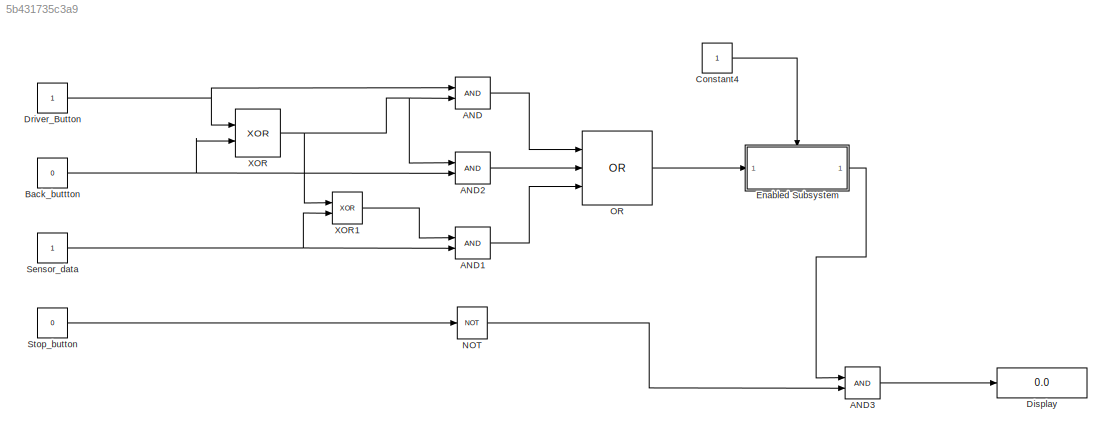
MODEL slx_5b431735c3a9
KIND model
CONFIG AbsTol = auto
CONFIG EnableMultiTasking = off
CONFIG FixedStep = auto
CONFIG MaxStep = auto
CONFIG MinStep = auto
CONFIG RelTol = 1e-3
CONFIG SampleTimeConstraint = Unconstrained
CONFIG Solver = VariableStepAuto
CONFIG SolverName = VariableStepAuto
CONFIG StartTime = 0.0
CONFIG StopTime = inf
BLOCK [Logic] AND
  AllPortsSameDT = off
  IconShape = distinctive
  OutDataTypeStr = boolean
  Ports = [2, 1]
BLOCK [Logic] AND1
  AllPortsSameDT = off
  IconShape = distinctive
  OutDataTypeStr = boolean
  Ports = [2, 1]
BLOCK [Logic] AND2
  AllPortsSameDT = off
  IconShape = distinctive
  OutDataTypeStr = boolean
  Ports = [2, 1]
BLOCK [Logic] AND3
  AllPortsSameDT = off
  IconShape = distinctive
  OutDataTypeStr = boolean
  Ports = [2, 1]
BLOCK [Constant] Back_buttton
  Value = 0
BLOCK [Constant] Constant4
BLOCK [Display] Display
  Decimation = 1
  Ports = [1]
BLOCK [Constant] Driver_Button
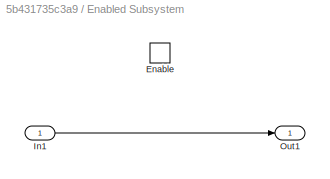
BLOCK [SubSystem] Enabled Subsystem
  Ports = [1, 1, 1]
  RequestExecContextInheritance = off
  TreatAsAtomicUnit = on
BLOCK [EnablePort] Enabled Subsystem/Enable
  Ports = []
BLOCK [Inport] Enabled Subsystem/In1
BLOCK [Outport] Enabled Subsystem/Out1
BLOCK [Logic] NOT
  AllPortsSameDT = off
  IconShape = distinctive
  Operator = NOT
  OutDataTypeStr = boolean
  Ports = [1, 1]
BLOCK [Logic] OR
  AllPortsSameDT = off
  IconShape = distinctive
  Inputs = 3
  Operator = OR
  OutDataTypeStr = boolean
  Ports = [3, 1]
BLOCK [Constant] Sensor_data
BLOCK [Constant] Stop_button
  Value = 0
BLOCK [Logic] XOR
  AllPortsSameDT = off
  IconShape = distinctive
  Operator = XOR
  OutDataTypeStr = boolean
  Ports = [2, 1]
BLOCK [Logic] XOR1
  AllPortsSameDT = off
  IconShape = distinctive
  Operator = XOR
  OutDataTypeStr = boolean
  Ports = [2, 1]
LINE AND1:1 -> OR:3
LINE AND2:1 -> OR:2
LINE AND3:1 -> Display:1
LINE AND:1 -> OR:1
NET Back_buttton:1 -> AND2:2, XOR:2
LINE Constant4:1 -> Enabled Subsystem:enable
NET Driver_Button:1 -> AND:1, XOR:1
LINE Enabled Subsystem/In1:1 -> Enabled Subsystem/Out1:1
LINE Enabled Subsystem:1 -> AND3:1
LINE NOT:1 -> AND3:2
LINE OR:1 -> Enabled Subsystem:1
NET Sensor_data:1 -> AND1:2, XOR1:2
LINE Stop_button:1 -> NOT:1
LINE XOR1:1 -> AND1:1
NET XOR:1 -> AND2:1, AND:2, XOR1:1
note: NET lines group one-source signal fan-out (src -> all destinations, sorted); 1:1 wires keep LINE
